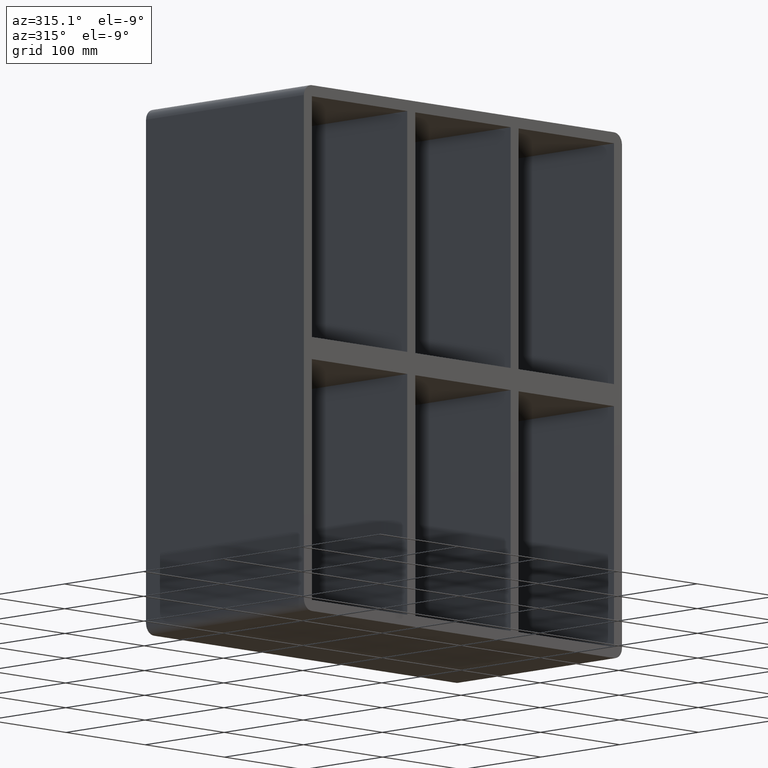
[diagram: clean part render]
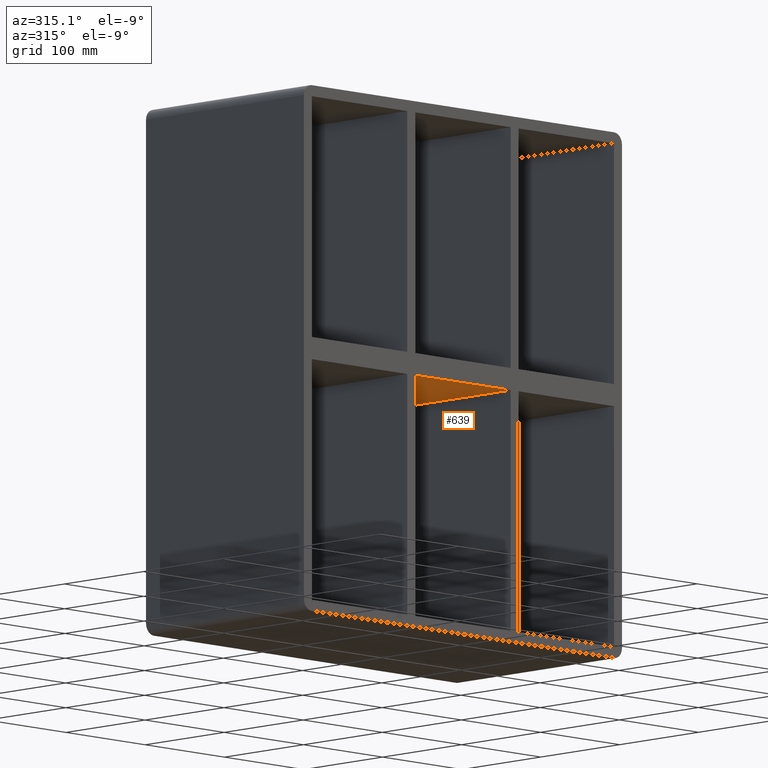
[diagram: same view with one face highlighted and labeled with its STEP entity id]
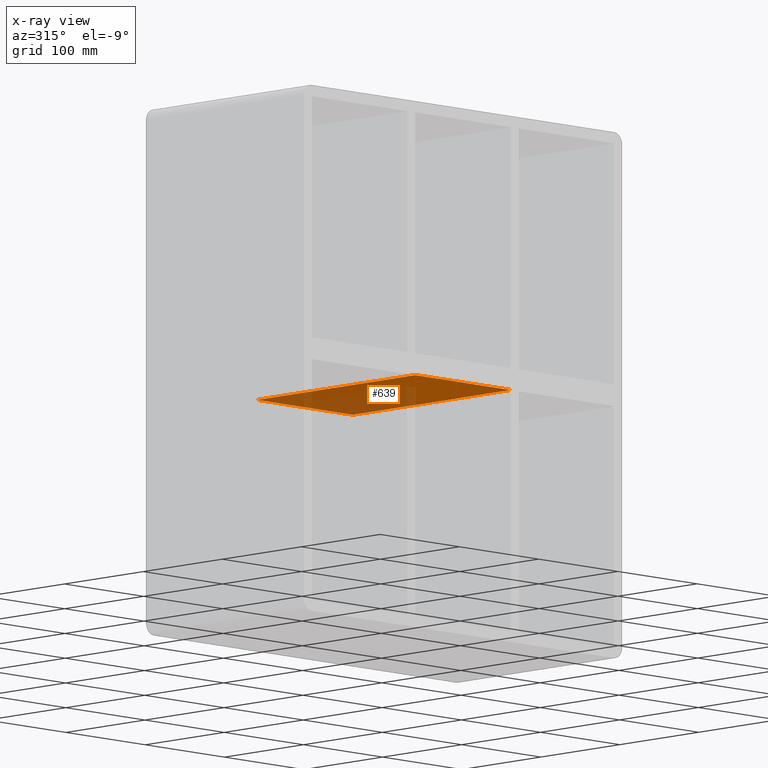
[diagram: x-ray of the same camera — body ghosted, the highlighted face saturated]
A machine part, auxiliary view. The second image highlights one B-rep face of the part: STEP entity #639.
The next image is the same camera in x-ray: the body ghosted, the highlighted face saturated — about 48% of this face is hidden behind the body in this view.
In plain terms, the highlighted planar face has unit normal (0, 0, -1).
Its self-contained STEP definition (entity closure, byte-faithful):
#113=CARTESIAN_POINT('',(60.2499999999987,197.0,-10.00000000001787));
#114=VERTEX_POINT('',#113);
#115=CARTESIAN_POINT('',(60.2499999999987,-3.0,-10.00000000001787));
#116=VERTEX_POINT('',#115);
#117=CARTESIAN_POINT('',(60.249999999998707,197.0,-10.00000000001787));
#118=DIRECTION('',(0.0,-1.0,0.0));
#119=VECTOR('',#118,200.0);
#120=LINE('',#117,#119);
#121=EDGE_CURVE('',#114,#116,#120,.T.);
#366=CARTESIAN_POINT('',(-60.250000000014552,-3.0,-10.000000000017888));
#367=VERTEX_POINT('',#366);
#374=CARTESIAN_POINT('',(60.249999999998693,-3.0,-10.000000000017872));
#375=DIRECTION('',(-1.0,0.0,0.0));
#376=VECTOR('',#375,120.50000000001324);
#377=LINE('',#374,#376);
#378=EDGE_CURVE('',#116,#367,#377,.T.);
#616=CARTESIAN_POINT('',(190.75000000000728,-3.0,-10.000000000017856));
#617=DIRECTION('',(0.0,0.0,-1.0));
#618=DIRECTION('',(-1.0,0.0,0.0));
#619=AXIS2_PLACEMENT_3D('',#616,#617,#618);
#620=PLANE('',#619);
#621=ORIENTED_EDGE('',*,*,#121,.T.);
#622=ORIENTED_EDGE('',*,*,#378,.T.);
#623=CARTESIAN_POINT('',(-60.250000000014552,197.0,-10.000000000017888));
#624=VERTEX_POINT('',#623);
#625=CARTESIAN_POINT('',(-60.250000000014552,197.0,-10.000000000017904));
#626=DIRECTION('',(0.0,-1.0,0.0));
#627=VECTOR('',#626,200.0);
#628=LINE('',#625,#627);
#629=EDGE_CURVE('',#624,#367,#628,.T.);
#630=ORIENTED_EDGE('',*,*,#629,.F.);
#631=CARTESIAN_POINT('',(60.249999999998693,197.0,-10.000000000017872));
#632=DIRECTION('',(-1.0,0.0,0.0));
#633=VECTOR('',#632,120.50000000001324);
#634=LINE('',#631,#633);
#635=EDGE_CURVE('',#114,#624,#634,.T.);
#636=ORIENTED_EDGE('',*,*,#635,.F.);
#637=EDGE_LOOP('',(#621,#622,#630,#636));
#638=FACE_OUTER_BOUND('',#637,.T.);
#639=ADVANCED_FACE('',(#638),#620,.T.);